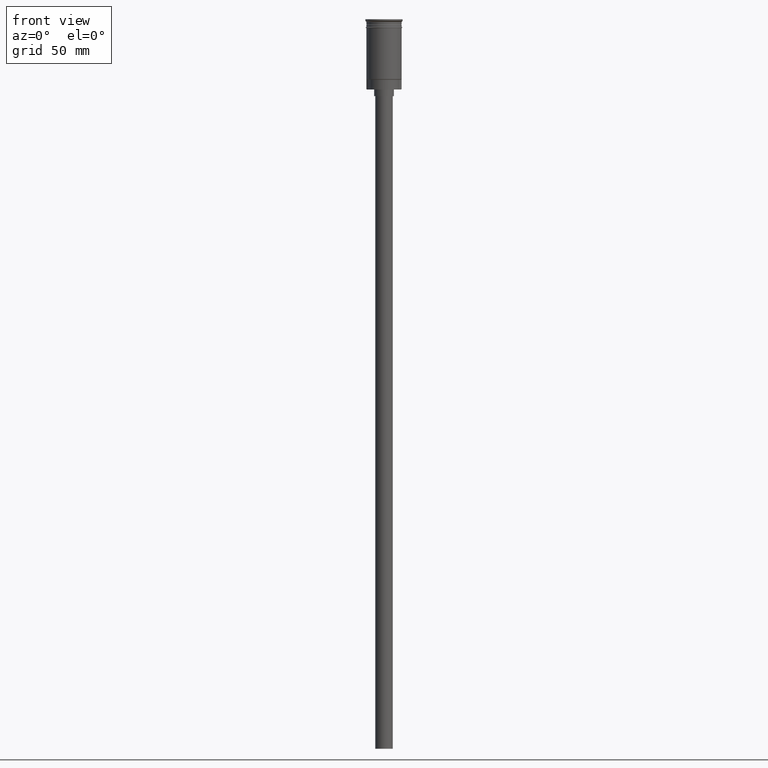
[diagram: clean part render]
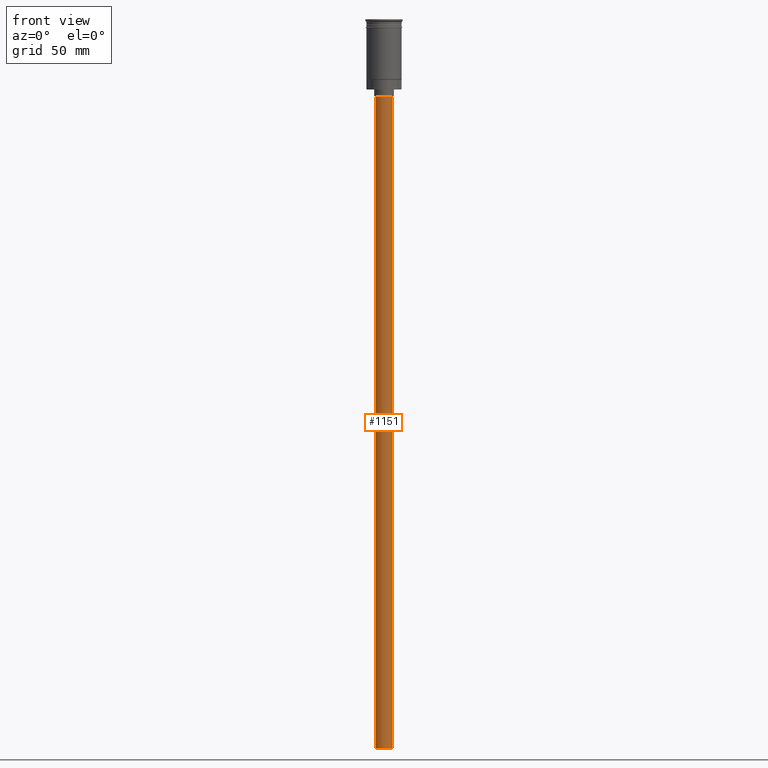
[diagram: same view with one face highlighted and labeled with its STEP entity id]
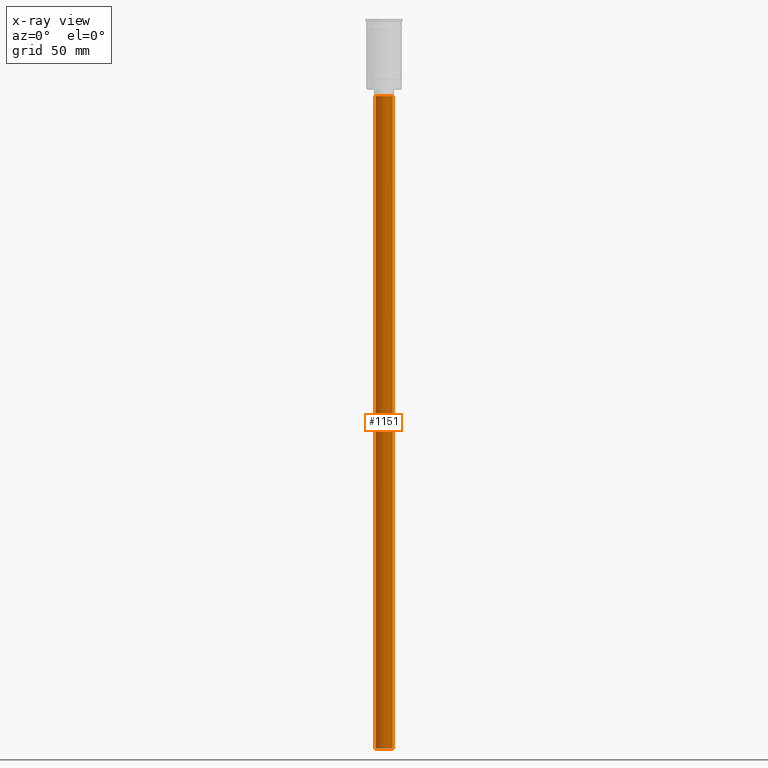
[diagram: x-ray of the same camera — body ghosted, the highlighted face saturated]
A machine part, front view. The second image highlights one B-rep face of the part: STEP entity #1151.
The next image is the same camera in x-ray: the body ghosted, the highlighted face saturated — about 0% of this face is hidden behind the body in this view.
In plain terms, the highlighted cylindrical surface (edge-blend (fillet) strip) has radius 4 mm, axis along (-0, -0, 1).
Its self-contained STEP definition (entity closure, byte-faithful):
#24 = CARTESIAN_POINT ( 'NONE',  ( 4.000000000000000000, 0.000000000000000000, -35.00000000000000000 ) ) ;
#39 = CARTESIAN_POINT ( 'NONE',  ( 4.000000000000000000, 0.000000000000000000, -331.9999999999999432 ) ) ;
#113 = DIRECTION ( 'NONE',  ( 1.000000000000000000, 0.000000000000000000, 0.000000000000000000 ) ) ;
#144 = ORIENTED_EDGE ( 'NONE', *, *, #1603, .T. ) ;
#221 = DIRECTION ( 'NONE',  ( -0.000000000000000000, -0.000000000000000000, 1.000000000000000000 ) ) ;
#257 = DIRECTION ( 'NONE',  ( 0.000000000000000000, 0.000000000000000000, -1.000000000000000000 ) ) ;
#374 = CYLINDRICAL_SURFACE ( 'NONE', #1001, 4.000000000000000000 ) ;
#379 = DIRECTION ( 'NONE',  ( -1.000000000000000000, 0.000000000000000000, 0.000000000000000000 ) ) ;
#391 = CARTESIAN_POINT ( 'NONE',  ( 0.000000000000000000, 0.000000000000000000, -35.00000000000000000 ) ) ;
#470 = DIRECTION ( 'NONE',  ( -0.000000000000000000, -0.000000000000000000, 1.000000000000000000 ) ) ;
#475 = EDGE_CURVE ( 'NONE', #928, #1157, #574, .T. ) ;
#522 = CARTESIAN_POINT ( 'NONE',  ( 0.000000000000000000, 0.000000000000000000, -331.9999999999999432 ) ) ;
#574 = CIRCLE ( 'NONE', #786, 4.000000000000000000 ) ;
#579 = ORIENTED_EDGE ( 'NONE', *, *, #1593, .F. ) ;
#635 = ORIENTED_EDGE ( 'NONE', *, *, #475, .F. ) ;
#645 = CARTESIAN_POINT ( 'NONE',  ( -4.000000000000000000, 4.898587196589412829E-16, -331.9999999999999432 ) ) ;
#746 = LINE ( 'NONE', #645, #952 ) ;
#769 = DIRECTION ( 'NONE',  ( -0.000000000000000000, -0.000000000000000000, 1.000000000000000000 ) ) ;
#772 = VERTEX_POINT ( 'NONE', #24 ) ;
#785 = VERTEX_POINT ( 'NONE', #984 ) ;
#786 = AXIS2_PLACEMENT_3D ( 'NONE', #522, #1510, #379 ) ;
#874 = CARTESIAN_POINT ( 'NONE',  ( -4.000000000000000000, 4.898587196589412829E-16, -331.9999999999999432 ) ) ;
#928 = VERTEX_POINT ( 'NONE', #39 ) ;
#935 = ORIENTED_EDGE ( 'NONE', *, *, #1470, .T. ) ;
#952 = VECTOR ( 'NONE', #769, 1000.000000000000000 ) ;
#963 = EDGE_LOOP ( 'NONE', ( #579, #635, #935, #144 ) ) ;
#984 = CARTESIAN_POINT ( 'NONE',  ( -4.000000000000000000, 4.898587196589412829E-16, -35.00000000000000000 ) ) ;
#1001 = AXIS2_PLACEMENT_3D ( 'NONE', #1221, #221, #113 ) ;
#1151 = ADVANCED_FACE ( 'NONE', ( #1481 ), #374, .T. ) ;
#1157 = VERTEX_POINT ( 'NONE', #874 ) ;
#1221 = CARTESIAN_POINT ( 'NONE',  ( 0.000000000000000000, 0.000000000000000000, -331.9999999999999432 ) ) ;
#1344 = LINE ( 'NONE', #1570, #1463 ) ;
#1368 = DIRECTION ( 'NONE',  ( -1.000000000000000000, 0.000000000000000000, 0.000000000000000000 ) ) ;
#1384 = CIRCLE ( 'NONE', #1511, 4.000000000000000000 ) ;
#1463 = VECTOR ( 'NONE', #470, 1000.000000000000000 ) ;
#1470 = EDGE_CURVE ( 'NONE', #928, #772, #1344, .T. ) ;
#1481 = FACE_OUTER_BOUND ( 'NONE', #963, .T. ) ;
#1510 = DIRECTION ( 'NONE',  ( 0.000000000000000000, 0.000000000000000000, -1.000000000000000000 ) ) ;
#1511 = AXIS2_PLACEMENT_3D ( 'NONE', #391, #257, #1368 ) ;
#1570 = CARTESIAN_POINT ( 'NONE',  ( 4.000000000000000000, 0.000000000000000000, -331.9999999999999432 ) ) ;
#1593 = EDGE_CURVE ( 'NONE', #1157, #785, #746, .T. ) ;
#1603 = EDGE_CURVE ( 'NONE', #772, #785, #1384, .T. ) ;